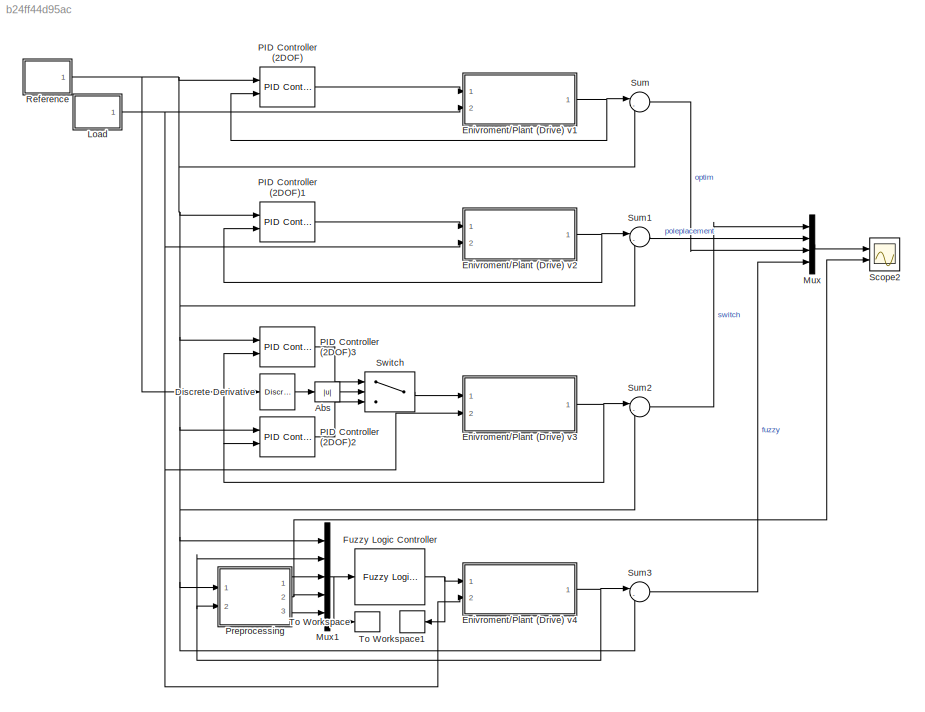
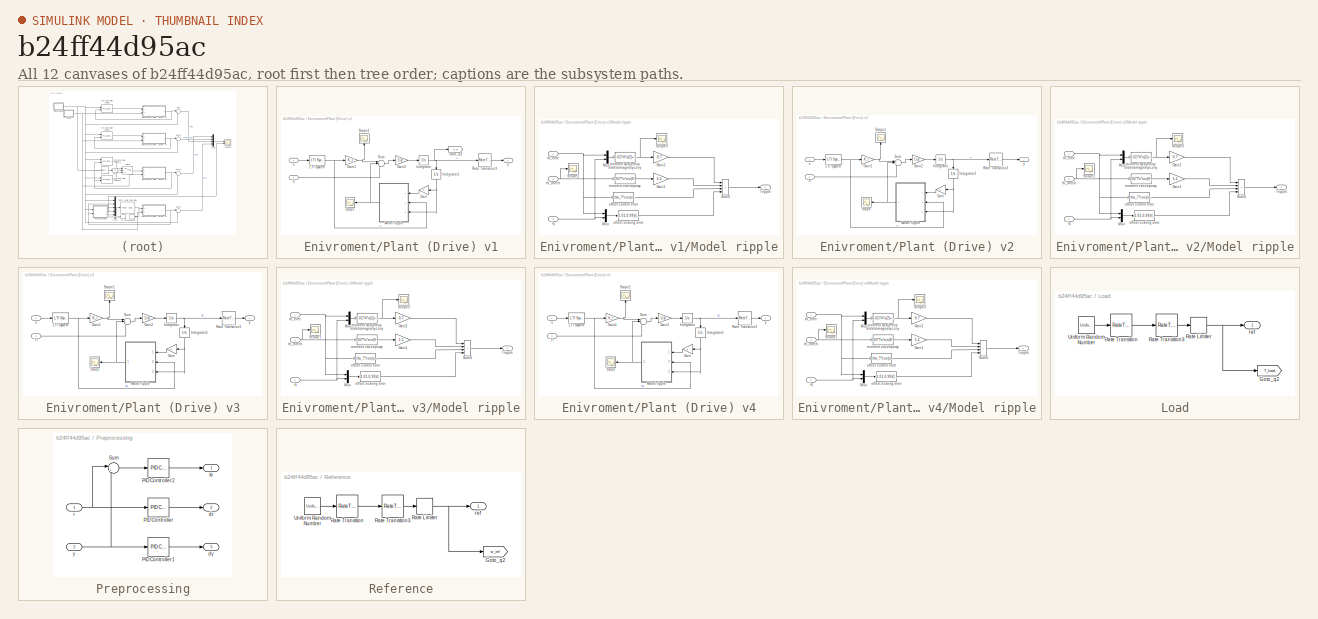
[diagram: thumbnail index - all 12 canvases of the model, root first then tree order]
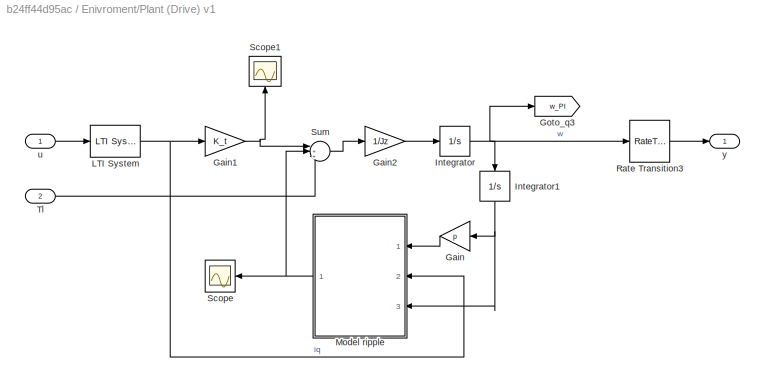
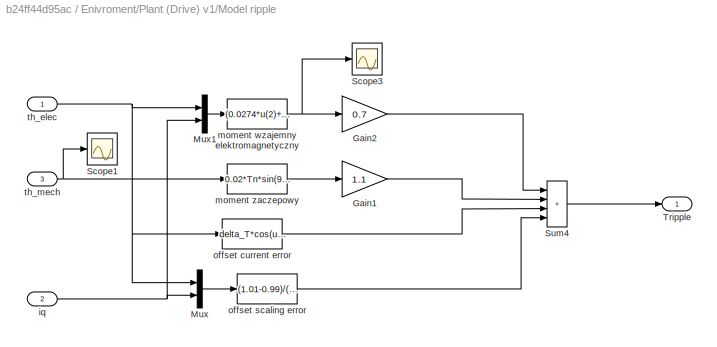
MODEL slx_b24ff44d95ac
KIND model
CONFIG AbsTol = auto
CONFIG EnableMultiTasking = off
CONFIG FixedStep = auto
CONFIG MaxStep = ts
CONFIG MinStep = auto
CONFIG RelTol = 1e-3
CONFIG SampleTimeConstraint = Unconstrained
CONFIG SolverName = VariableStepAuto
CONFIG StartTime = 0.0
CONFIG StopTime = 100
BLOCK [Abs] Abs
  SaturateOnIntegerOverflow = off
BLOCK [Reference] Discrete Derivative  REF=simulink/Quick Insert/Discrete/Discrete Derivative
  Ports = [1, 1]
  SourceBlock = simulink/Quick Insert/Discrete/Discrete Derivative
  SourceProductBaseCode = SL
  SourceType = Discrete Derivative
BLOCK [SubSystem] Enivroment//Plant (Drive) v1
  Ports = [2, 1]
  RequestExecContextInheritance = off
BLOCK [Gain] Enivroment//Plant (Drive) v1/Gain
  Gain = p
  NameLocation = top
BLOCK [Gain] Enivroment//Plant (Drive) v1/Gain1
  Gain = K_t
BLOCK [Gain] Enivroment//Plant (Drive) v1/Gain2
  Gain = 1/Jz
BLOCK [Goto] Enivroment//Plant (Drive) v1/Goto_q3
  GotoTag = w_PI
  NameLocation = top
  TagVisibility = global
BLOCK [Integrator] Enivroment//Plant (Drive) v1/Integrator
  Ports = [1, 1]
BLOCK [Integrator] Enivroment//Plant (Drive) v1/Integrator1
  NameLocation = left
  Ports = [1, 1]
BLOCK [Reference] Enivroment//Plant (Drive) v1/LTI System  REF=cstblocks/LTI System
  Ports = [1, 1]
  SourceBlock = cstblocks/LTI System
  SourceProductBaseCode = CT
  SourceType = LTI Block
BLOCK [SubSystem] Enivroment//Plant (Drive) v1/Model ripple
  NameLocation = top
  Ports = [3, 1]
  RequestExecContextInheritance = off
BLOCK [Gain] Enivroment//Plant (Drive) v1/Model ripple/Gain1
  Gain = 1.1
  OutDataTypeStr = Inherit: Same as input
  ParamDataTypeStr = Inherit: Same as input
  SaturateOnIntegerOverflow = on
BLOCK [Gain] Enivroment//Plant (Drive) v1/Model ripple/Gain2
  Gain = 0.7
  OutDataTypeStr = Inherit: Same as input
  ParamDataTypeStr = Inherit: Same as input
  SaturateOnIntegerOverflow = on
BLOCK [Mux] Enivroment//Plant (Drive) v1/Model ripple/Mux
  DisplayOption = bar
  Inputs = 2
  Ports = [2, 1]
BLOCK [Mux] Enivroment//Plant (Drive) v1/Model ripple/Mux1
  DisplayOption = bar
  Inputs = 2
  Ports = [2, 1]
BLOCK [Scope] Enivroment//Plant (Drive) v1/Model ripple/Scope1
  Floating = off
  NumInputPorts = 1
  Ports = [1]
  ScopeSpecificationString = C++SS(StrPVP('Location','[188, 365, 512, 604]'),StrPVP('Open','off'),MxPVP('AxesTitles',54,'struct(''axes1'',''%<SignalLabel>'')'),StrPVP('ShowLegends','off'),StrPVP('TimeRange','0.5'),StrPVP('SaveName','ScopeData15'),StrPVP('DataFormat','StructureWithTime'),StrPVP('LimitDataPoints','off'),StrPVP('BlockParamSampleTime','0'),StrPVP('Decimation','1'),StrPVP('BlockParamSampleInput','off'))  <repeated x4 — deduplicated; at blocks: Scope1>
BLOCK [Scope] Enivroment//Plant (Drive) v1/Model ripple/Scope3
  Floating = off
  NumInputPorts = 1
  Ports = [1]
  ScopeSpecificationString = C++SS(StrPVP('Location','[6, 58, 1158, 777]'),StrPVP('Open','off'),MxPVP('AxesTitles',54,'struct(''axes1'',''%<SignalLabel>'')'),StrPVP('ShowLegends','off'),StrPVP('TimeRange','0.5'),StrPVP('SaveName','ScopeData3'),StrPVP('DataFormat','StructureWithTime'),StrPVP('LimitDataPoints','off'),StrPVP('BlockParamSampleTime','0'),StrPVP('Decimation','1'),StrPVP('BlockParamSampleInput','off'))  <repeated x4 — deduplicated; at blocks: Scope3>
BLOCK [Sum] Enivroment//Plant (Drive) v1/Model ripple/Sum4
  IconShape = rectangular
  InputSameDT = on
  Inputs = ++++
  OutDataTypeStr = Inherit: Same as first input
  Ports = [4, 1]
  SaturateOnIntegerOverflow = on
BLOCK [Outport] Enivroment//Plant (Drive) v1/Model ripple/Tripple
  VectorParamsAs1DForOutWhenUnconnected = off
BLOCK [Inport] Enivroment//Plant (Drive) v1/Model ripple/iq
  Port = 2
BLOCK [Fcn] Enivroment//Plant (Drive) v1/Model ripple/moment wzajemny elektromagnetyczny
  Expr = (0.0274*u(2)+0.0438)*Tn*sin(6*u(1))+(0.0274*u(2)+0.0438)*0.07*Tn*sin(12*u(1))
BLOCK [Fcn] Enivroment//Plant (Drive) v1/Model ripple/moment zaczepowy
  Expr = 0.02*Tn*sin(9*24*u(1))
BLOCK [Fcn] Enivroment//Plant (Drive) v1/Model ripple/offset current error
  Expr = delta_T*cos(u(1)+alfa)
BLOCK [Fcn] Enivroment//Plant (Drive) v1/Model ripple/offset scaling error
  Expr = (1.01-0.99)/(1.01*0.99)*K_t/sqrt(3)*u[2]*cos(2*u(1)+pi/3)+(1.01-0.99)/(1.01*0.99)*K_t/2*sqrt(3)*u(2)
BLOCK [Inport] Enivroment//Plant (Drive) v1/Model ripple/th_elec
BLOCK [Inport] Enivroment//Plant (Drive) v1/Model ripple/th_mech
  Port = 3
BLOCK [RateTransition] Enivroment//Plant (Drive) v1/Rate Transition3
  OutPortSampleTime = ts
BLOCK [Scope] Enivroment//Plant (Drive) v1/Scope
  Commented = on
  Floating = off
  NameLocation = top
  NumInputPorts = 1
  Ports = [1]
  ScopeSpecificationString = Simulink.scopes.TimeScopeBlockCfg('CurrentConfiguration', extmgr.ConfigurationSet(extmgr.Configuration('Core','General UI',true),extmgr.Configuration('Core','Source UI',true),extmgr.Configuration('Sources','WiredSimulink',true,'DataLoggingVariableName','ScopeData1'),extmgr.Configuration('Visuals','Time Domain',true,'SerializedDisplays',{struct('MinYLimReal','-3.57357','MaxYLimReal','3.28451','YLab...<+1429ch>  <repeated x4 — deduplicated; at blocks: Scope>
BLOCK [Scope] Enivroment//Plant (Drive) v1/Scope1
  Commented = on
  Floating = off
  NameLocation = right
  NumInputPorts = 1
  Ports = [1]
  ScopeSpecificationString = Simulink.scopes.TimeScopeBlockCfg('CurrentConfiguration', extmgr.ConfigurationSet(extmgr.Configuration('Core','General UI',true),extmgr.Configuration('Core','Source UI',true),extmgr.Configuration('Sources','WiredSimulink',true,'DataLoggingVariableName','ScopeData2'),extmgr.Configuration('Visuals','Time Domain',true,'SerializedDisplays',{struct('MinYLimReal','-65.78629','MaxYLimReal','80.51792','YL...<+1370ch>  <repeated x4 — deduplicated; at blocks: Scope1>
BLOCK [Sum] Enivroment//Plant (Drive) v1/Sum
  Inputs = |+++
  Ports = [3, 1]
BLOCK [Inport] Enivroment//Plant (Drive) v1/Tl
  Port = 2
BLOCK [Inport] Enivroment//Plant (Drive) v1/u
BLOCK [Outport] Enivroment//Plant (Drive) v1/y
  VectorParamsAs1DForOutWhenUnconnected = off
BLOCK [SubSystem] Enivroment//Plant (Drive) v2
  Ports = [2, 1]
  RequestExecContextInheritance = off
BLOCK [Gain] Enivroment//Plant (Drive) v2/Gain
  Gain = p
  NameLocation = top
BLOCK [Gain] Enivroment//Plant (Drive) v2/Gain1
  Gain = K_t
BLOCK [Gain] Enivroment//Plant (Drive) v2/Gain2
  Gain = 1/Jz
BLOCK [Integrator] Enivroment//Plant (Drive) v2/Integrator
  Ports = [1, 1]
BLOCK [Integrator] Enivroment//Plant (Drive) v2/Integrator1
  NameLocation = left
  Ports = [1, 1]
BLOCK [Reference] Enivroment//Plant (Drive) v2/LTI System  REF=cstblocks/LTI System
  Ports = [1, 1]
  SourceBlock = cstblocks/LTI System
  SourceProductBaseCode = CT
  SourceType = LTI Block
BLOCK [SubSystem] Enivroment//Plant (Drive) v2/Model ripple
  NameLocation = top
  Ports = [3, 1]
  RequestExecContextInheritance = off
BLOCK [Gain] Enivroment//Plant (Drive) v2/Model ripple/Gain1
  Gain = 1.1
  OutDataTypeStr = Inherit: Same as input
  ParamDataTypeStr = Inherit: Same as input
  SaturateOnIntegerOverflow = on
BLOCK [Gain] Enivroment//Plant (Drive) v2/Model ripple/Gain2
  Gain = 0.7
  OutDataTypeStr = Inherit: Same as input
  ParamDataTypeStr = Inherit: Same as input
  SaturateOnIntegerOverflow = on
BLOCK [Mux] Enivroment//Plant (Drive) v2/Model ripple/Mux
  DisplayOption = bar
  Inputs = 2
  Ports = [2, 1]
BLOCK [Mux] Enivroment//Plant (Drive) v2/Model ripple/Mux1
  DisplayOption = bar
  Inputs = 2
  Ports = [2, 1]
BLOCK [Scope] Enivroment//Plant (Drive) v2/Model ripple/Scope1
  Floating = off
  NumInputPorts = 1
  Ports = [1]
BLOCK [Scope] Enivroment//Plant (Drive) v2/Model ripple/Scope3
  Floating = off
  NumInputPorts = 1
  Ports = [1]
BLOCK [Sum] Enivroment//Plant (Drive) v2/Model ripple/Sum4
  IconShape = rectangular
  InputSameDT = on
  Inputs = ++++
  OutDataTypeStr = Inherit: Same as first input
  Ports = [4, 1]
  SaturateOnIntegerOverflow = on
BLOCK [Outport] Enivroment//Plant (Drive) v2/Model ripple/Tripple
  VectorParamsAs1DForOutWhenUnconnected = off
BLOCK [Inport] Enivroment//Plant (Drive) v2/Model ripple/iq
  Port = 2
BLOCK [Fcn] Enivroment//Plant (Drive) v2/Model ripple/moment wzajemny elektromagnetyczny
  Expr = (0.0274*u(2)+0.0438)*Tn*sin(6*u(1))+(0.0274*u(2)+0.0438)*0.07*Tn*sin(12*u(1))
BLOCK [Fcn] Enivroment//Plant (Drive) v2/Model ripple/moment zaczepowy
  Expr = 0.02*Tn*sin(9*24*u(1))
BLOCK [Fcn] Enivroment//Plant (Drive) v2/Model ripple/offset current error
  Expr = delta_T*cos(u(1)+alfa)
BLOCK [Fcn] Enivroment//Plant (Drive) v2/Model ripple/offset scaling error
  Expr = (1.01-0.99)/(1.01*0.99)*K_t/sqrt(3)*u[2]*cos(2*u(1)+pi/3)+(1.01-0.99)/(1.01*0.99)*K_t/2*sqrt(3)*u(2)
BLOCK [Inport] Enivroment//Plant (Drive) v2/Model ripple/th_elec
BLOCK [Inport] Enivroment//Plant (Drive) v2/Model ripple/th_mech
  Port = 3
BLOCK [RateTransition] Enivroment//Plant (Drive) v2/Rate Transition3
  OutPortSampleTime = ts
BLOCK [Scope] Enivroment//Plant (Drive) v2/Scope
  Commented = on
  Floating = off
  NameLocation = top
  NumInputPorts = 1
  Ports = [1]
BLOCK [Scope] Enivroment//Plant (Drive) v2/Scope1
  Commented = on
  Floating = off
  NameLocation = right
  NumInputPorts = 1
  Ports = [1]
BLOCK [Sum] Enivroment//Plant (Drive) v2/Sum
  Inputs = |+++
  Ports = [3, 1]
BLOCK [Inport] Enivroment//Plant (Drive) v2/Tl
  Port = 2
BLOCK [Inport] Enivroment//Plant (Drive) v2/u
BLOCK [Outport] Enivroment//Plant (Drive) v2/y
  VectorParamsAs1DForOutWhenUnconnected = off
BLOCK [SubSystem] Enivroment//Plant (Drive) v3
  Ports = [2, 1]
  RequestExecContextInheritance = off
BLOCK [Gain] Enivroment//Plant (Drive) v3/Gain
  Gain = p
  NameLocation = top
BLOCK [Gain] Enivroment//Plant (Drive) v3/Gain1
  Gain = K_t
BLOCK [Gain] Enivroment//Plant (Drive) v3/Gain2
  Gain = 1/Jz
BLOCK [Integrator] Enivroment//Plant (Drive) v3/Integrator
  Ports = [1, 1]
BLOCK [Integrator] Enivroment//Plant (Drive) v3/Integrator1
  NameLocation = left
  Ports = [1, 1]
BLOCK [Reference] Enivroment//Plant (Drive) v3/LTI System  REF=cstblocks/LTI System
  Ports = [1, 1]
  SourceBlock = cstblocks/LTI System
  SourceProductBaseCode = CT
  SourceType = LTI Block
BLOCK [SubSystem] Enivroment//Plant (Drive) v3/Model ripple
  NameLocation = top
  Ports = [3, 1]
  RequestExecContextInheritance = off
BLOCK [Gain] Enivroment//Plant (Drive) v3/Model ripple/Gain1
  Gain = 1.1
  OutDataTypeStr = Inherit: Same as input
  ParamDataTypeStr = Inherit: Same as input
  SaturateOnIntegerOverflow = on
BLOCK [Gain] Enivroment//Plant (Drive) v3/Model ripple/Gain2
  Gain = 0.7
  OutDataTypeStr = Inherit: Same as input
  ParamDataTypeStr = Inherit: Same as input
  SaturateOnIntegerOverflow = on
BLOCK [Mux] Enivroment//Plant (Drive) v3/Model ripple/Mux
  DisplayOption = bar
  Inputs = 2
  Ports = [2, 1]
BLOCK [Mux] Enivroment//Plant (Drive) v3/Model ripple/Mux1
  DisplayOption = bar
  Inputs = 2
  Ports = [2, 1]
BLOCK [Scope] Enivroment//Plant (Drive) v3/Model ripple/Scope1
  Floating = off
  NumInputPorts = 1
  Ports = [1]
BLOCK [Scope] Enivroment//Plant (Drive) v3/Model ripple/Scope3
  Floating = off
  NumInputPorts = 1
  Ports = [1]
BLOCK [Sum] Enivroment//Plant (Drive) v3/Model ripple/Sum4
  IconShape = rectangular
  InputSameDT = on
  Inputs = ++++
  OutDataTypeStr = Inherit: Same as first input
  Ports = [4, 1]
  SaturateOnIntegerOverflow = on
BLOCK [Outport] Enivroment//Plant (Drive) v3/Model ripple/Tripple
  VectorParamsAs1DForOutWhenUnconnected = off
BLOCK [Inport] Enivroment//Plant (Drive) v3/Model ripple/iq
  Port = 2
BLOCK [Fcn] Enivroment//Plant (Drive) v3/Model ripple/moment wzajemny elektromagnetyczny
  Expr = (0.0274*u(2)+0.0438)*Tn*sin(6*u(1))+(0.0274*u(2)+0.0438)*0.07*Tn*sin(12*u(1))
BLOCK [Fcn] Enivroment//Plant (Drive) v3/Model ripple/moment zaczepowy
  Expr = 0.02*Tn*sin(9*24*u(1))
BLOCK [Fcn] Enivroment//Plant (Drive) v3/Model ripple/offset current error
  Expr = delta_T*cos(u(1)+alfa)
BLOCK [Fcn] Enivroment//Plant (Drive) v3/Model ripple/offset scaling error
  Expr = (1.01-0.99)/(1.01*0.99)*K_t/sqrt(3)*u[2]*cos(2*u(1)+pi/3)+(1.01-0.99)/(1.01*0.99)*K_t/2*sqrt(3)*u(2)
BLOCK [Inport] Enivroment//Plant (Drive) v3/Model ripple/th_elec
BLOCK [Inport] Enivroment//Plant (Drive) v3/Model ripple/th_mech
  Port = 3
BLOCK [RateTransition] Enivroment//Plant (Drive) v3/Rate Transition3
  OutPortSampleTime = ts
BLOCK [Scope] Enivroment//Plant (Drive) v3/Scope
  Commented = on
  Floating = off
  NameLocation = top
  NumInputPorts = 1
  Ports = [1]
BLOCK [Scope] Enivroment//Plant (Drive) v3/Scope1
  Commented = on
  Floating = off
  NameLocation = right
  NumInputPorts = 1
  Ports = [1]
BLOCK [Sum] Enivroment//Plant (Drive) v3/Sum
  Inputs = |+++
  Ports = [3, 1]
BLOCK [Inport] Enivroment//Plant (Drive) v3/Tl
  Port = 2
BLOCK [Inport] Enivroment//Plant (Drive) v3/u
BLOCK [Outport] Enivroment//Plant (Drive) v3/y
  VectorParamsAs1DForOutWhenUnconnected = off
BLOCK [SubSystem] Enivroment//Plant (Drive) v4
  Ports = [2, 1]
  RequestExecContextInheritance = off
BLOCK [Gain] Enivroment//Plant (Drive) v4/Gain
  Gain = p
  NameLocation = top
BLOCK [Gain] Enivroment//Plant (Drive) v4/Gain1
  Gain = K_t
BLOCK [Gain] Enivroment//Plant (Drive) v4/Gain2
  Gain = 1/Jz
BLOCK [Integrator] Enivroment//Plant (Drive) v4/Integrator
  Ports = [1, 1]
BLOCK [Integrator] Enivroment//Plant (Drive) v4/Integrator1
  NameLocation = left
  Ports = [1, 1]
BLOCK [Reference] Enivroment//Plant (Drive) v4/LTI System  REF=cstblocks/LTI System
  Ports = [1, 1]
  SourceBlock = cstblocks/LTI System
  SourceProductBaseCode = CT
  SourceType = LTI Block
BLOCK [SubSystem] Enivroment//Plant (Drive) v4/Model ripple
  NameLocation = top
  Ports = [3, 1]
  RequestExecContextInheritance = off
BLOCK [Gain] Enivroment//Plant (Drive) v4/Model ripple/Gain1
  Gain = 1.1
  OutDataTypeStr = Inherit: Same as input
  ParamDataTypeStr = Inherit: Same as input
  SaturateOnIntegerOverflow = on
BLOCK [Gain] Enivroment//Plant (Drive) v4/Model ripple/Gain2
  Gain = 0.7
  OutDataTypeStr = Inherit: Same as input
  ParamDataTypeStr = Inherit: Same as input
  SaturateOnIntegerOverflow = on
BLOCK [Mux] Enivroment//Plant (Drive) v4/Model ripple/Mux
  DisplayOption = bar
  Inputs = 2
  Ports = [2, 1]
BLOCK [Mux] Enivroment//Plant (Drive) v4/Model ripple/Mux1
  DisplayOption = bar
  Inputs = 2
  Ports = [2, 1]
BLOCK [Scope] Enivroment//Plant (Drive) v4/Model ripple/Scope1
  Floating = off
  NumInputPorts = 1
  Ports = [1]
BLOCK [Scope] Enivroment//Plant (Drive) v4/Model ripple/Scope3
  Floating = off
  NumInputPorts = 1
  Ports = [1]
BLOCK [Sum] Enivroment//Plant (Drive) v4/Model ripple/Sum4
  IconShape = rectangular
  InputSameDT = on
  Inputs = ++++
  OutDataTypeStr = Inherit: Same as first input
  Ports = [4, 1]
  SaturateOnIntegerOverflow = on
BLOCK [Outport] Enivroment//Plant (Drive) v4/Model ripple/Tripple
  VectorParamsAs1DForOutWhenUnconnected = off
BLOCK [Inport] Enivroment//Plant (Drive) v4/Model ripple/iq
  Port = 2
BLOCK [Fcn] Enivroment//Plant (Drive) v4/Model ripple/moment wzajemny elektromagnetyczny
  Expr = (0.0274*u(2)+0.0438)*Tn*sin(6*u(1))+(0.0274*u(2)+0.0438)*0.07*Tn*sin(12*u(1))
BLOCK [Fcn] Enivroment//Plant (Drive) v4/Model ripple/moment zaczepowy
  Expr = 0.02*Tn*sin(9*24*u(1))
BLOCK [Fcn] Enivroment//Plant (Drive) v4/Model ripple/offset current error
  Expr = delta_T*cos(u(1)+alfa)
BLOCK [Fcn] Enivroment//Plant (Drive) v4/Model ripple/offset scaling error
  Expr = (1.01-0.99)/(1.01*0.99)*K_t/sqrt(3)*u[2]*cos(2*u(1)+pi/3)+(1.01-0.99)/(1.01*0.99)*K_t/2*sqrt(3)*u(2)
BLOCK [Inport] Enivroment//Plant (Drive) v4/Model ripple/th_elec
BLOCK [Inport] Enivroment//Plant (Drive) v4/Model ripple/th_mech
  Port = 3
BLOCK [RateTransition] Enivroment//Plant (Drive) v4/Rate Transition3
  OutPortSampleTime = ts
BLOCK [Scope] Enivroment//Plant (Drive) v4/Scope
  Commented = on
  Floating = off
  NameLocation = top
  NumInputPorts = 1
  Ports = [1]
BLOCK [Scope] Enivroment//Plant (Drive) v4/Scope1
  Commented = on
  Floating = off
  NameLocation = right
  NumInputPorts = 1
  Ports = [1]
BLOCK [Sum] Enivroment//Plant (Drive) v4/Sum
  Inputs = |+++
  Ports = [3, 1]
BLOCK [Inport] Enivroment//Plant (Drive) v4/Tl
  Port = 2
BLOCK [Inport] Enivroment//Plant (Drive) v4/u
BLOCK [Outport] Enivroment//Plant (Drive) v4/y
  VectorParamsAs1DForOutWhenUnconnected = off
BLOCK [Reference] Fuzzy Logic Controller  REF=fuzblock/Fuzzy Logic   (lib defined in mdl_858b3b3e7478)
Controller
  Ports = [1, 1]
  SourceBlock = fuzblock/Fuzzy Logic \nController
  SourceProductBaseCode = FL
  SourceType = Fuzzy Inference System
BLOCK [SubSystem] Load
  Ports = [0, 1]
  RequestExecContextInheritance = off
BLOCK [Goto] Load/Goto_q2
  GotoTag = T_load
  NameLocation = top
  TagVisibility = global
BLOCK [RateLimiter] Load/Rate Limiter
  FallingSlewLimit = -50/0.1
  RisingSlewLimit = 50/0.1
  SampleTimeMode = inherited
BLOCK [RateTransition] Load/Rate Transition
BLOCK [RateTransition] Load/Rate Transition3
  OutPortSampleTime = ts
BLOCK [UniformRandomNumber] Load/Uniform Random Number
  Maximum = 50
  Minimum = -50
  SampleTime = 100
  Seed = 321
BLOCK [Outport] Load/ref
  VectorParamsAs1DForOutWhenUnconnected = off
BLOCK [Mux] Mux
  DisplayOption = bar
  Ports = [4, 1]
BLOCK [Mux] Mux1
  DisplayOption = bar
  Inputs = 5
  Ports = [5, 1]
BLOCK [Reference] PID Controller (2DOF)  REF=slpidlib/PID Controller (2DOF)
  Ports = [2, 1]
  SourceBlock = slpidlib/PID Controller (2DOF)
  SourceProductBaseCode = SL
  SourceType = PID 2dof
BLOCK [Reference] PID Controller (2DOF)1  REF=slpidlib/PID Controller (2DOF)
  Ports = [2, 1]
  SourceBlock = slpidlib/PID Controller (2DOF)
  SourceProductBaseCode = SL
  SourceType = PID 2dof
BLOCK [Reference] PID Controller (2DOF)2  REF=slpidlib/PID Controller (2DOF)
  Ports = [2, 1]
  SourceBlock = slpidlib/PID Controller (2DOF)
  SourceProductBaseCode = SL
  SourceType = PID 2dof
BLOCK [Reference] PID Controller (2DOF)3  REF=slpidlib/PID Controller (2DOF)
  Ports = [2, 1]
  SourceBlock = slpidlib/PID Controller (2DOF)
  SourceProductBaseCode = SL
  SourceType = PID 2dof
BLOCK [SubSystem] Preprocessing
  Ports = [2, 3]
  RequestExecContextInheritance = off
BLOCK [Outport] Preprocessing/Ie
BLOCK [Reference] Preprocessing/PID Controller  REF=slpidlib/PID Controller
  Ports = [1, 1]
  SourceBlock = slpidlib/PID Controller
  SourceProductBaseCode = SL
  SourceType = PID 1dof
BLOCK [Reference] Preprocessing/PID Controller1  REF=slpidlib/PID Controller
  Ports = [1, 1]
  SourceBlock = slpidlib/PID Controller
  SourceProductBaseCode = SL
  SourceType = PID 1dof
BLOCK [Reference] Preprocessing/PID Controller2  REF=slpidlib/PID Controller
  Ports = [1, 1]
  SourceBlock = slpidlib/PID Controller
  SourceProductBaseCode = SL
  SourceType = PID 1dof
BLOCK [Sum] Preprocessing/Sum
  Inputs = |+-
  Ports = [2, 1]
BLOCK [Outport] Preprocessing/dr
  Port = 2
BLOCK [Outport] Preprocessing/dy
  Port = 3
BLOCK [Inport] Preprocessing/r
BLOCK [Inport] Preprocessing/y
  Port = 2
BLOCK [SubSystem] Reference
  Ports = [0, 1]
  RequestExecContextInheritance = off
BLOCK [Goto] Reference/Goto_q2
  GotoTag = w_ref
  NameLocation = top
  TagVisibility = global
BLOCK [RateLimiter] Reference/Rate Limiter
  FallingSlewLimit = -0.2/0.1
  RisingSlewLimit = 0.2/0.1
  SampleTimeMode = inherited
BLOCK [RateTransition] Reference/Rate Transition
  InitialCondition = 0.05
BLOCK [RateTransition] Reference/Rate Transition3
  OutPortSampleTime = ts
BLOCK [UniformRandomNumber] Reference/Uniform Random Number
  Maximum = 2
  Minimum = -2
  SampleTime = 50.0
  Seed = 123
BLOCK [Outport] Reference/ref
  VectorParamsAs1DForOutWhenUnconnected = off
BLOCK [Scope] Scope2
  Floating = off
  NumInputPorts = 2
  Ports = [2]
  ScopeSpecificationString = Simulink.scopes.TimeScopeBlockCfg('CurrentConfiguration', extmgr.ConfigurationSet(extmgr.Configuration('Core','General UI',true,'FigureColor',[0.831372549019608 0.815686274509804 0.784313725490196]),extmgr.Configuration('Core','Source UI',true),extmgr.Configuration('Sources','WiredSimulink',true,'DataLoggingVariableName','ScopeData2'),extmgr.Configuration('Visuals','Time Domain',true,'SerializedDi...<+2657ch>
BLOCK [Sum] Sum
  Inputs = |-+
  Ports = [2, 1]
BLOCK [Sum] Sum1
  Inputs = |-+
  Ports = [2, 1]
BLOCK [Sum] Sum2
  Inputs = |-+
  Ports = [2, 1]
BLOCK [Sum] Sum3
  Inputs = |-+
  Ports = [2, 1]
BLOCK [Switch] Switch
  Criteria = u2 > Threshold
  InputSameDT = off
  SaturateOnIntegerOverflow = off
BLOCK [ToWorkspace] To Workspace
  FixptAsFi = on
  MaxDataPoints = inf
  Ports = [1]
  SampleTime = -1
  SaveFormat = Timeseries
  VariableName = x
BLOCK [ToWorkspace] To Workspace1
  FixptAsFi = on
  MaxDataPoints = inf
  NameLocation = top
  Ports = [1]
  SampleTime = -1
  SaveFormat = Timeseries
  VariableName = u
LINE Abs:1 -> Switch:2
LINE Discrete Derivative:1 -> Abs:1
NET Enivroment//Plant (Drive) v1/Gain1:1 -> Enivroment//Plant (Drive) v1/Scope1:1, Enivroment//Plant (Drive) v1/Sum:1
LINE Enivroment//Plant (Drive) v1/Gain2:1 -> Enivroment//Plant (Drive) v1/Integrator:1
LINE Enivroment//Plant (Drive) v1/Gain:1 -> Enivroment//Plant (Drive) v1/Model ripple:1
NET Enivroment//Plant (Drive) v1/Integrator1:1 -> Enivroment//Plant (Drive) v1/Gain:1, Enivroment//Plant (Drive) v1/Model ripple:3
NET Enivroment//Plant (Drive) v1/Integrator:1 -> Enivroment//Plant (Drive) v1/Goto_q3:1, Enivroment//Plant (Drive) v1/Integrator1:1, Enivroment//Plant (Drive) v1/Rate Transition3:1
NET Enivroment//Plant (Drive) v1/LTI System:1 -> Enivroment//Plant (Drive) v1/Gain1:1, Enivroment//Plant (Drive) v1/Model ripple:2
LINE Enivroment//Plant (Drive) v1/Model ripple/Gain1:1 -> Enivroment//Plant (Drive) v1/Model ripple/Sum4:2
LINE Enivroment//Plant (Drive) v1/Model ripple/Gain2:1 -> Enivroment//Plant (Drive) v1/Model ripple/Sum4:1
LINE Enivroment//Plant (Drive) v1/Model ripple/Mux1:1 -> Enivroment//Plant (Drive) v1/Model ripple/moment wzajemny elektromagnetyczny:1
LINE Enivroment//Plant (Drive) v1/Model ripple/Mux:1 -> Enivroment//Plant (Drive) v1/Model ripple/offset scaling error:1
LINE Enivroment//Plant (Drive) v1/Model ripple/Sum4:1 -> Enivroment//Plant (Drive) v1/Model ripple/Tripple:1
NET Enivroment//Plant (Drive) v1/Model ripple/iq:1 -> Enivroment//Plant (Drive) v1/Model ripple/Mux1:2, Enivroment//Plant (Drive) v1/Model ripple/Mux:2
NET Enivroment//Plant (Drive) v1/Model ripple/moment wzajemny elektromagnetyczny:1 -> Enivroment//Plant (Drive) v1/Model ripple/Gain2:1, Enivroment//Plant (Drive) v1/Model ripple/Scope3:1
LINE Enivroment//Plant (Drive) v1/Model ripple/moment zaczepowy:1 -> Enivroment//Plant (Drive) v1/Model ripple/Gain1:1
LINE Enivroment//Plant (Drive) v1/Model ripple/offset current error:1 -> Enivroment//Plant (Drive) v1/Model ripple/Sum4:3
LINE Enivroment//Plant (Drive) v1/Model ripple/offset scaling error:1 -> Enivroment//Plant (Drive) v1/Model ripple/Sum4:4
NET Enivroment//Plant (Drive) v1/Model ripple/th_elec:1 -> Enivroment//Plant (Drive) v1/Model ripple/Mux1:1, Enivroment//Plant (Drive) v1/Model ripple/Mux:1, Enivroment//Plant (Drive) v1/Model ripple/offset current error:1
NET Enivroment//Plant (Drive) v1/Model ripple/th_mech:1 -> Enivroment//Plant (Drive) v1/Model ripple/Scope1:1, Enivroment//Plant (Drive) v1/Model ripple/moment zaczepowy:1
NET Enivroment//Plant (Drive) v1/Model ripple:1 -> Enivroment//Plant (Drive) v1/Scope:1, Enivroment//Plant (Drive) v1/Sum:2
LINE Enivroment//Plant (Drive) v1/Rate Transition3:1 -> Enivroment//Plant (Drive) v1/y:1
LINE Enivroment//Plant (Drive) v1/Sum:1 -> Enivroment//Plant (Drive) v1/Gain2:1
LINE Enivroment//Plant (Drive) v1/Tl:1 -> Enivroment//Plant (Drive) v1/Sum:3
LINE Enivroment//Plant (Drive) v1/u:1 -> Enivroment//Plant (Drive) v1/LTI System:1
NET Enivroment//Plant (Drive) v1:1 -> PID Controller (2DOF):2, Sum:1
NET Enivroment//Plant (Drive) v2/Gain1:1 -> Enivroment//Plant (Drive) v2/Scope1:1, Enivroment//Plant (Drive) v2/Sum:1
LINE Enivroment//Plant (Drive) v2/Gain2:1 -> Enivroment//Plant (Drive) v2/Integrator:1
LINE Enivroment//Plant (Drive) v2/Gain:1 -> Enivroment//Plant (Drive) v2/Model ripple:1
NET Enivroment//Plant (Drive) v2/Integrator1:1 -> Enivroment//Plant (Drive) v2/Gain:1, Enivroment//Plant (Drive) v2/Model ripple:3
NET Enivroment//Plant (Drive) v2/Integrator:1 -> Enivroment//Plant (Drive) v2/Integrator1:1, Enivroment//Plant (Drive) v2/Rate Transition3:1
NET Enivroment//Plant (Drive) v2/LTI System:1 -> Enivroment//Plant (Drive) v2/Gain1:1, Enivroment//Plant (Drive) v2/Model ripple:2
LINE Enivroment//Plant (Drive) v2/Model ripple/Gain1:1 -> Enivroment//Plant (Drive) v2/Model ripple/Sum4:2
LINE Enivroment//Plant (Drive) v2/Model ripple/Gain2:1 -> Enivroment//Plant (Drive) v2/Model ripple/Sum4:1
LINE Enivroment//Plant (Drive) v2/Model ripple/Mux1:1 -> Enivroment//Plant (Drive) v2/Model ripple/moment wzajemny elektromagnetyczny:1
LINE Enivroment//Plant (Drive) v2/Model ripple/Mux:1 -> Enivroment//Plant (Drive) v2/Model ripple/offset scaling error:1
LINE Enivroment//Plant (Drive) v2/Model ripple/Sum4:1 -> Enivroment//Plant (Drive) v2/Model ripple/Tripple:1
NET Enivroment//Plant (Drive) v2/Model ripple/iq:1 -> Enivroment//Plant (Drive) v2/Model ripple/Mux1:2, Enivroment//Plant (Drive) v2/Model ripple/Mux:2
NET Enivroment//Plant (Drive) v2/Model ripple/moment wzajemny elektromagnetyczny:1 -> Enivroment//Plant (Drive) v2/Model ripple/Gain2:1, Enivroment//Plant (Drive) v2/Model ripple/Scope3:1
LINE Enivroment//Plant (Drive) v2/Model ripple/moment zaczepowy:1 -> Enivroment//Plant (Drive) v2/Model ripple/Gain1:1
LINE Enivroment//Plant (Drive) v2/Model ripple/offset current error:1 -> Enivroment//Plant (Drive) v2/Model ripple/Sum4:3
LINE Enivroment//Plant (Drive) v2/Model ripple/offset scaling error:1 -> Enivroment//Plant (Drive) v2/Model ripple/Sum4:4
NET Enivroment//Plant (Drive) v2/Model ripple/th_elec:1 -> Enivroment//Plant (Drive) v2/Model ripple/Mux1:1, Enivroment//Plant (Drive) v2/Model ripple/Mux:1, Enivroment//Plant (Drive) v2/Model ripple/offset current error:1
NET Enivroment//Plant (Drive) v2/Model ripple/th_mech:1 -> Enivroment//Plant (Drive) v2/Model ripple/Scope1:1, Enivroment//Plant (Drive) v2/Model ripple/moment zaczepowy:1
NET Enivroment//Plant (Drive) v2/Model ripple:1 -> Enivroment//Plant (Drive) v2/Scope:1, Enivroment//Plant (Drive) v2/Sum:2
LINE Enivroment//Plant (Drive) v2/Rate Transition3:1 -> Enivroment//Plant (Drive) v2/y:1
LINE Enivroment//Plant (Drive) v2/Sum:1 -> Enivroment//Plant (Drive) v2/Gain2:1
LINE Enivroment//Plant (Drive) v2/Tl:1 -> Enivroment//Plant (Drive) v2/Sum:3
LINE Enivroment//Plant (Drive) v2/u:1 -> Enivroment//Plant (Drive) v2/LTI System:1
NET Enivroment//Plant (Drive) v2:1 -> PID Controller (2DOF)1:2, Sum1:1
NET Enivroment//Plant (Drive) v3/Gain1:1 -> Enivroment//Plant (Drive) v3/Scope1:1, Enivroment//Plant (Drive) v3/Sum:1
LINE Enivroment//Plant (Drive) v3/Gain2:1 -> Enivroment//Plant (Drive) v3/Integrator:1
LINE Enivroment//Plant (Drive) v3/Gain:1 -> Enivroment//Plant (Drive) v3/Model ripple:1
NET Enivroment//Plant (Drive) v3/Integrator1:1 -> Enivroment//Plant (Drive) v3/Gain:1, Enivroment//Plant (Drive) v3/Model ripple:3
NET Enivroment//Plant (Drive) v3/Integrator:1 -> Enivroment//Plant (Drive) v3/Integrator1:1, Enivroment//Plant (Drive) v3/Rate Transition3:1
NET Enivroment//Plant (Drive) v3/LTI System:1 -> Enivroment//Plant (Drive) v3/Gain1:1, Enivroment//Plant (Drive) v3/Model ripple:2
LINE Enivroment//Plant (Drive) v3/Model ripple/Gain1:1 -> Enivroment//Plant (Drive) v3/Model ripple/Sum4:2
LINE Enivroment//Plant (Drive) v3/Model ripple/Gain2:1 -> Enivroment//Plant (Drive) v3/Model ripple/Sum4:1
LINE Enivroment//Plant (Drive) v3/Model ripple/Mux1:1 -> Enivroment//Plant (Drive) v3/Model ripple/moment wzajemny elektromagnetyczny:1
LINE Enivroment//Plant (Drive) v3/Model ripple/Mux:1 -> Enivroment//Plant (Drive) v3/Model ripple/offset scaling error:1
LINE Enivroment//Plant (Drive) v3/Model ripple/Sum4:1 -> Enivroment//Plant (Drive) v3/Model ripple/Tripple:1
NET Enivroment//Plant (Drive) v3/Model ripple/iq:1 -> Enivroment//Plant (Drive) v3/Model ripple/Mux1:2, Enivroment//Plant (Drive) v3/Model ripple/Mux:2
NET Enivroment//Plant (Drive) v3/Model ripple/moment wzajemny elektromagnetyczny:1 -> Enivroment//Plant (Drive) v3/Model ripple/Gain2:1, Enivroment//Plant (Drive) v3/Model ripple/Scope3:1
LINE Enivroment//Plant (Drive) v3/Model ripple/moment zaczepowy:1 -> Enivroment//Plant (Drive) v3/Model ripple/Gain1:1
LINE Enivroment//Plant (Drive) v3/Model ripple/offset current error:1 -> Enivroment//Plant (Drive) v3/Model ripple/Sum4:3
LINE Enivroment//Plant (Drive) v3/Model ripple/offset scaling error:1 -> Enivroment//Plant (Drive) v3/Model ripple/Sum4:4
NET Enivroment//Plant (Drive) v3/Model ripple/th_elec:1 -> Enivroment//Plant (Drive) v3/Model ripple/Mux1:1, Enivroment//Plant (Drive) v3/Model ripple/Mux:1, Enivroment//Plant (Drive) v3/Model ripple/offset current error:1
NET Enivroment//Plant (Drive) v3/Model ripple/th_mech:1 -> Enivroment//Plant (Drive) v3/Model ripple/Scope1:1, Enivroment//Plant (Drive) v3/Model ripple/moment zaczepowy:1
NET Enivroment//Plant (Drive) v3/Model ripple:1 -> Enivroment//Plant (Drive) v3/Scope:1, Enivroment//Plant (Drive) v3/Sum:2
LINE Enivroment//Plant (Drive) v3/Rate Transition3:1 -> Enivroment//Plant (Drive) v3/y:1
LINE Enivroment//Plant (Drive) v3/Sum:1 -> Enivroment//Plant (Drive) v3/Gain2:1
LINE Enivroment//Plant (Drive) v3/Tl:1 -> Enivroment//Plant (Drive) v3/Sum:3
LINE Enivroment//Plant (Drive) v3/u:1 -> Enivroment//Plant (Drive) v3/LTI System:1
NET Enivroment//Plant (Drive) v3:1 -> PID Controller (2DOF)2:2, PID Controller (2DOF)3:2, Sum2:1
NET Enivroment//Plant (Drive) v4/Gain1:1 -> Enivroment//Plant (Drive) v4/Scope1:1, Enivroment//Plant (Drive) v4/Sum:1
LINE Enivroment//Plant (Drive) v4/Gain2:1 -> Enivroment//Plant (Drive) v4/Integrator:1
LINE Enivroment//Plant (Drive) v4/Gain:1 -> Enivroment//Plant (Drive) v4/Model ripple:1
NET Enivroment//Plant (Drive) v4/Integrator1:1 -> Enivroment//Plant (Drive) v4/Gain:1, Enivroment//Plant (Drive) v4/Model ripple:3
NET Enivroment//Plant (Drive) v4/Integrator:1 -> Enivroment//Plant (Drive) v4/Integrator1:1, Enivroment//Plant (Drive) v4/Rate Transition3:1
NET Enivroment//Plant (Drive) v4/LTI System:1 -> Enivroment//Plant (Drive) v4/Gain1:1, Enivroment//Plant (Drive) v4/Model ripple:2
LINE Enivroment//Plant (Drive) v4/Model ripple/Gain1:1 -> Enivroment//Plant (Drive) v4/Model ripple/Sum4:2
LINE Enivroment//Plant (Drive) v4/Model ripple/Gain2:1 -> Enivroment//Plant (Drive) v4/Model ripple/Sum4:1
LINE Enivroment//Plant (Drive) v4/Model ripple/Mux1:1 -> Enivroment//Plant (Drive) v4/Model ripple/moment wzajemny elektromagnetyczny:1
LINE Enivroment//Plant (Drive) v4/Model ripple/Mux:1 -> Enivroment//Plant (Drive) v4/Model ripple/offset scaling error:1
LINE Enivroment//Plant (Drive) v4/Model ripple/Sum4:1 -> Enivroment//Plant (Drive) v4/Model ripple/Tripple:1
NET Enivroment//Plant (Drive) v4/Model ripple/iq:1 -> Enivroment//Plant (Drive) v4/Model ripple/Mux1:2, Enivroment//Plant (Drive) v4/Model ripple/Mux:2
NET Enivroment//Plant (Drive) v4/Model ripple/moment wzajemny elektromagnetyczny:1 -> Enivroment//Plant (Drive) v4/Model ripple/Gain2:1, Enivroment//Plant (Drive) v4/Model ripple/Scope3:1
LINE Enivroment//Plant (Drive) v4/Model ripple/moment zaczepowy:1 -> Enivroment//Plant (Drive) v4/Model ripple/Gain1:1
LINE Enivroment//Plant (Drive) v4/Model ripple/offset current error:1 -> Enivroment//Plant (Drive) v4/Model ripple/Sum4:3
LINE Enivroment//Plant (Drive) v4/Model ripple/offset scaling error:1 -> Enivroment//Plant (Drive) v4/Model ripple/Sum4:4
NET Enivroment//Plant (Drive) v4/Model ripple/th_elec:1 -> Enivroment//Plant (Drive) v4/Model ripple/Mux1:1, Enivroment//Plant (Drive) v4/Model ripple/Mux:1, Enivroment//Plant (Drive) v4/Model ripple/offset current error:1
NET Enivroment//Plant (Drive) v4/Model ripple/th_mech:1 -> Enivroment//Plant (Drive) v4/Model ripple/Scope1:1, Enivroment//Plant (Drive) v4/Model ripple/moment zaczepowy:1
NET Enivroment//Plant (Drive) v4/Model ripple:1 -> Enivroment//Plant (Drive) v4/Scope:1, Enivroment//Plant (Drive) v4/Sum:2
LINE Enivroment//Plant (Drive) v4/Rate Transition3:1 -> Enivroment//Plant (Drive) v4/y:1
LINE Enivroment//Plant (Drive) v4/Sum:1 -> Enivroment//Plant (Drive) v4/Gain2:1
LINE Enivroment//Plant (Drive) v4/Tl:1 -> Enivroment//Plant (Drive) v4/Sum:3
LINE Enivroment//Plant (Drive) v4/u:1 -> Enivroment//Plant (Drive) v4/LTI System:1
NET Enivroment//Plant (Drive) v4:1 -> Mux1:2, Preprocessing:2, Sum3:1
NET Fuzzy Logic Controller:1 -> Enivroment//Plant (Drive) v4:1, To Workspace1:1
NET Load/Rate Limiter:1 -> Load/Goto_q2:1, Load/ref:1
LINE Load/Rate Transition3:1 -> Load/Rate Limiter:1
LINE Load/Rate Transition:1 -> Load/Rate Transition3:1
LINE Load/Uniform Random Number:1 -> Load/Rate Transition:1
NET Load:1 -> Enivroment//Plant (Drive) v1:2, Enivroment//Plant (Drive) v2:2, Enivroment//Plant (Drive) v3:2, Enivroment//Plant (Drive) v4:2
NET Mux1:1 -> Fuzzy Logic Controller:1, To Workspace:1
LINE Mux:1 -> Scope2:1
LINE PID Controller (2DOF)1:1 -> Enivroment//Plant (Drive) v2:1
LINE PID Controller (2DOF)2:1 -> Switch:3
LINE PID Controller (2DOF)3:1 -> Switch:1
LINE PID Controller (2DOF):1 -> Enivroment//Plant (Drive) v1:1
LINE Preprocessing/PID Controller1:1 -> Preprocessing/dy:1
LINE Preprocessing/PID Controller2:1 -> Preprocessing/Ie:1
LINE Preprocessing/PID Controller:1 -> Preprocessing/dr:1
LINE Preprocessing/Sum:1 -> Preprocessing/PID Controller2:1
NET Preprocessing/r:1 -> Preprocessing/PID Controller:1, Preprocessing/Sum:1
NET Preprocessing/y:1 -> Preprocessing/PID Controller1:1, Preprocessing/Sum:2
LINE Preprocessing:1 -> Mux1:3
NET Preprocessing:2 -> Mux1:4, Scope2:2
LINE Preprocessing:3 -> Mux1:5
NET Reference/Rate Limiter:1 -> Reference/Goto_q2:1, Reference/ref:1
LINE Reference/Rate Transition3:1 -> Reference/Rate Limiter:1
LINE Reference/Rate Transition:1 -> Reference/Rate Transition3:1
LINE Reference/Uniform Random Number:1 -> Reference/Rate Transition:1
NET Reference:1 -> Discrete Derivative:1, Mux1:1, PID Controller (2DOF)1:1, PID Controller (2DOF)2:1, PID Controller (2DOF)3:1, PID Controller (2DOF):1, Preprocessing:1, Sum1:2, Sum2:2, Sum3:2, Sum:2
LINE Sum1:1 -> Mux:2
LINE Sum2:1 -> Mux:1
LINE Sum3:1 -> Mux:4
LINE Sum:1 -> Mux:3
LINE Switch:1 -> Enivroment//Plant (Drive) v3:1
note: NET lines group one-source signal fan-out (src -> all destinations, sorted); 1:1 wires keep LINE
